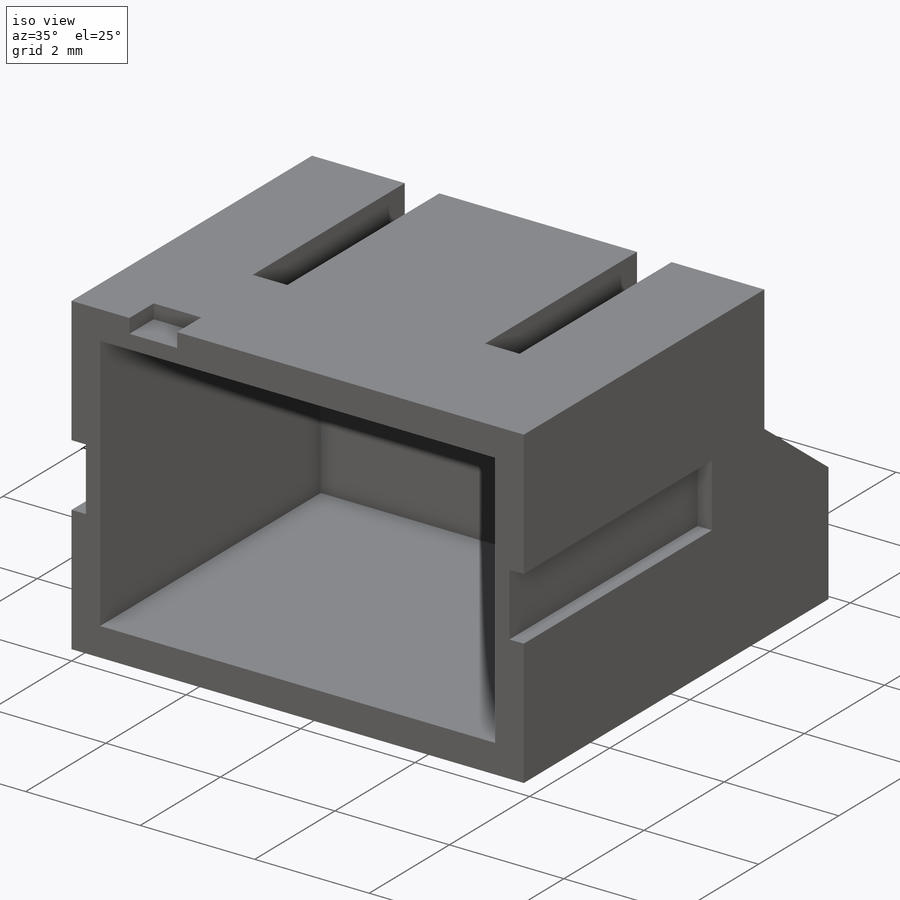
[diagram: iso view]
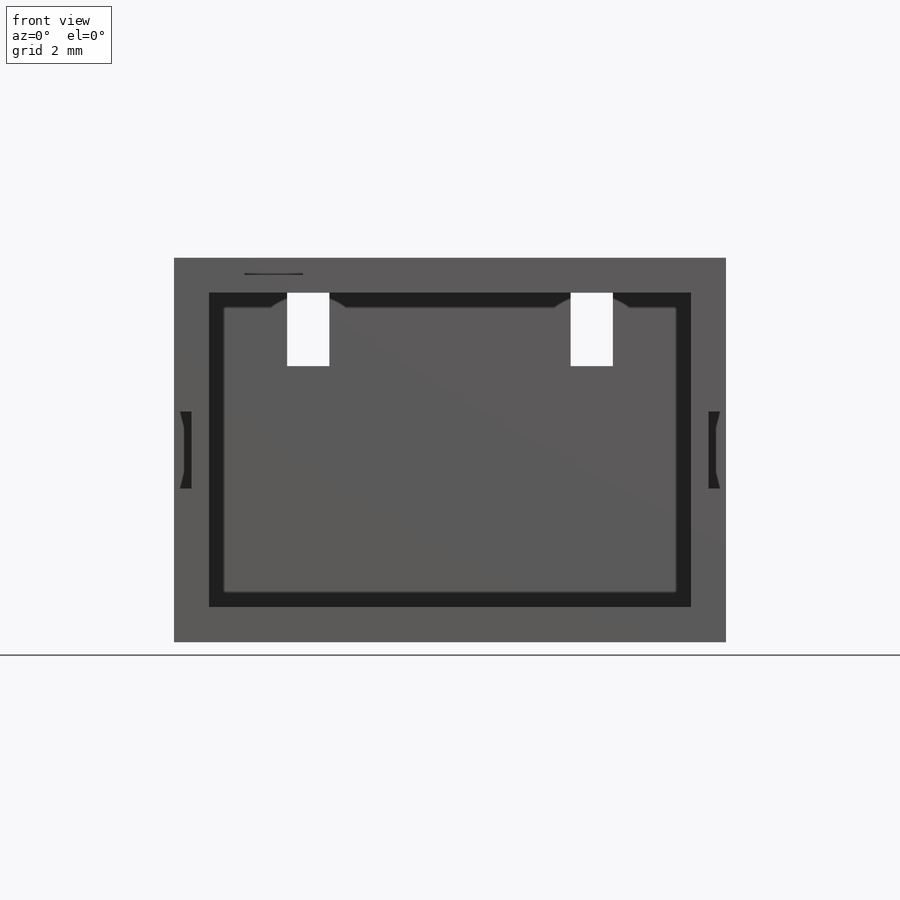
[diagram: front view]
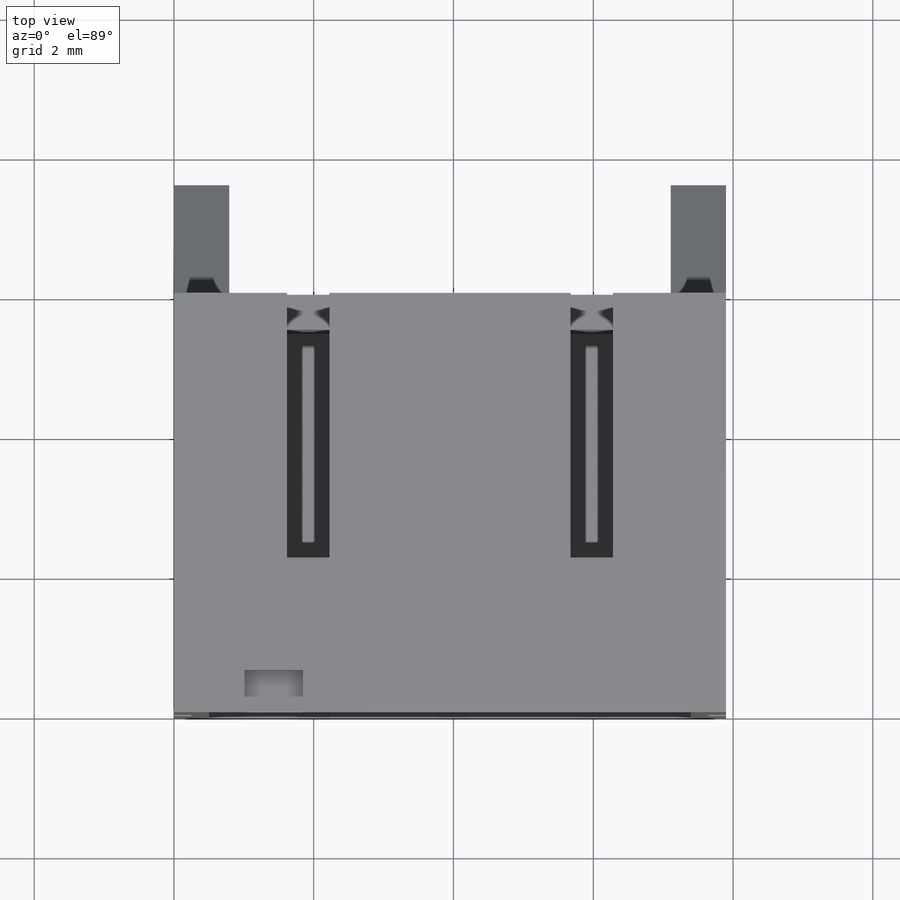
[diagram: top view]
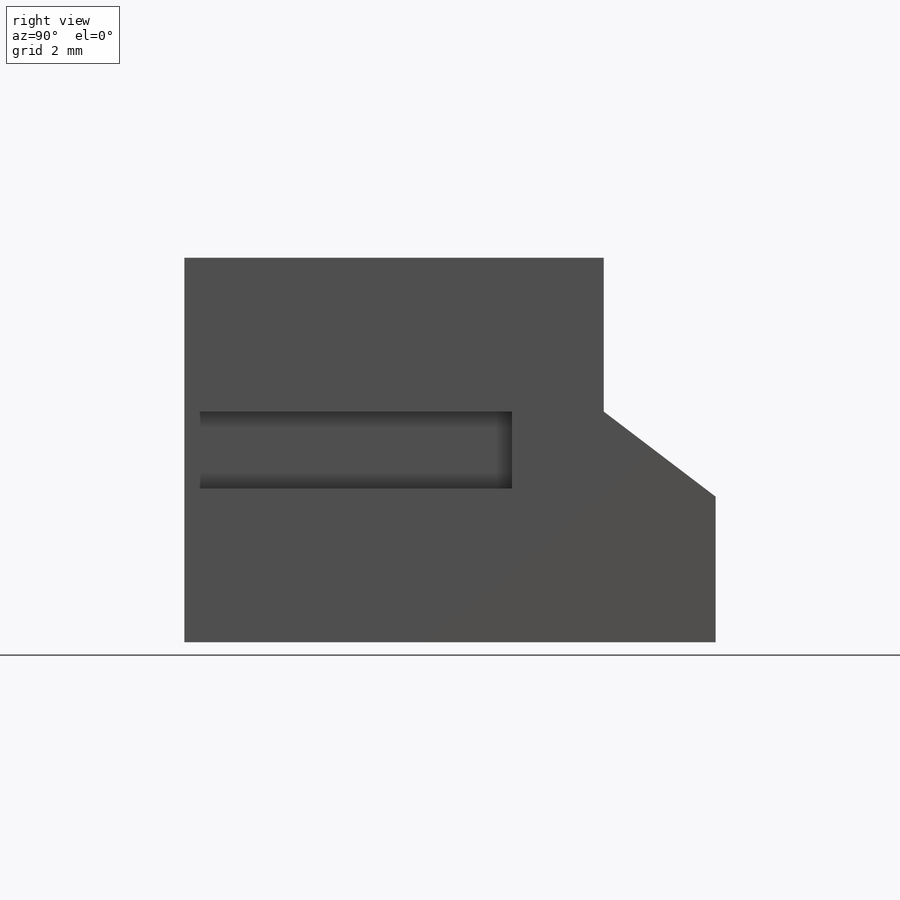
[diagram: right view]
SOLIDWORKS PART (.sldprt)
format: sldprt  version: not decoded by parser v0  size: 196,608 bytes
history: native  units: mm
features: sketch x5, cut_extrude x4, material x1, extrude x1, shell x1, plane x1, mirror x1 (+11 scaffold rows collapsed)
feature tree (25):
  scaffold x11  (default folders/planes/origin — collapsed)
  material  "Material <not specified>"
  sketch  "Sketch1"  dims[D1=7.6mm]
  extrude  "Boss-Extrude1"  Depth=7.9mm
  sketch  "Sketch4"
  cut_extrude  "Cut-Extrude2"  [1 undecoded]
  shell  "Shell1"  Thickness=0.5mm
  sketch  "Sketch2"
  cut_extrude  "Cut-Extrude1"  Depth=1.55mm
  sketch  "Sketch5"
  cut_extrude  "Cut-Extrude3"  Depth=0.25mm
  plane  "Plane1"
  sketch  "Sketch6"
  cut_extrude  "Cut-Extrude4"  Depth=0.25mm
  mirror  "Mirror1"
decode coverage: 6 of 12 modeling features carry decoded parameters
note: 1 parameter value undecoded
note: suppression state not decoded; provenance and decode notes live in map.json
